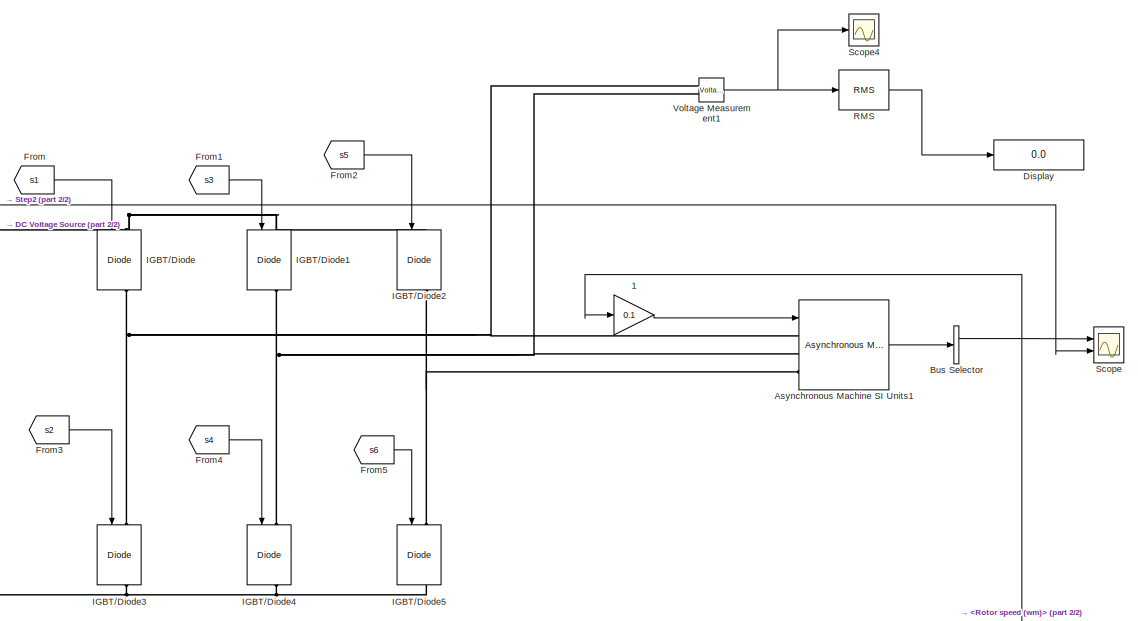
[diagram: root canvas - part 1/2, right side, full height]
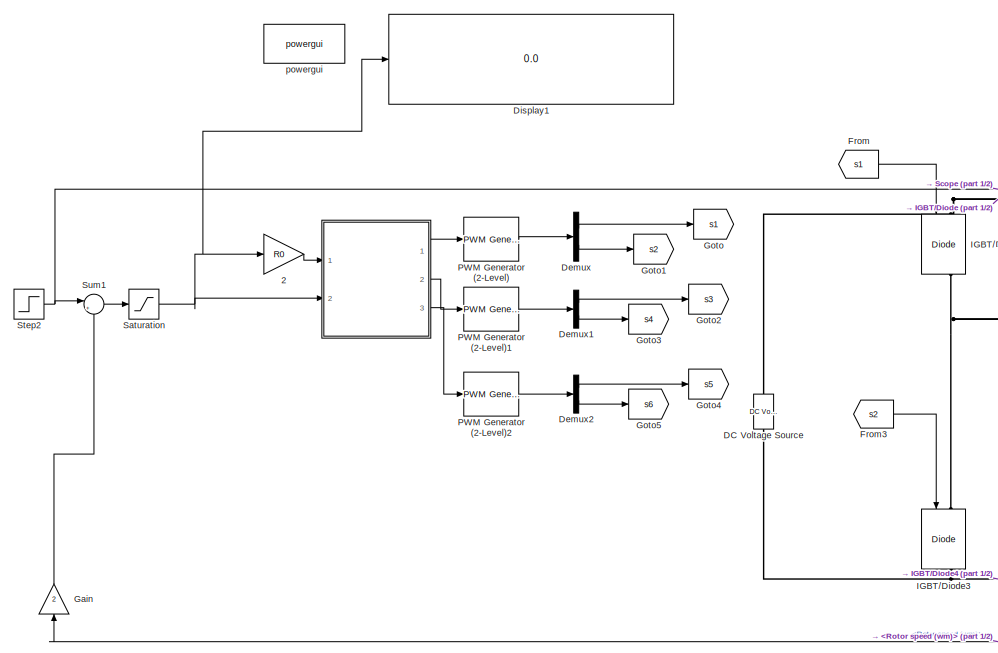
[diagram: root canvas - part 2/2, left side, full height]
MODEL slx_7ff1ade69273
KIND model
CONFIG AbsTol = auto
CONFIG EnableMultiTasking = off
CONFIG FixedStep = 1e-5
CONFIG MaxStep = 1e-4
CONFIG MinStep = auto
CONFIG RelTol = 1e-3
CONFIG SampleTimeConstraint = Unconstrained
CONFIG SolverName = VariableStepAuto
CONFIG StartTime = 0.0
CONFIG StopTime = 2
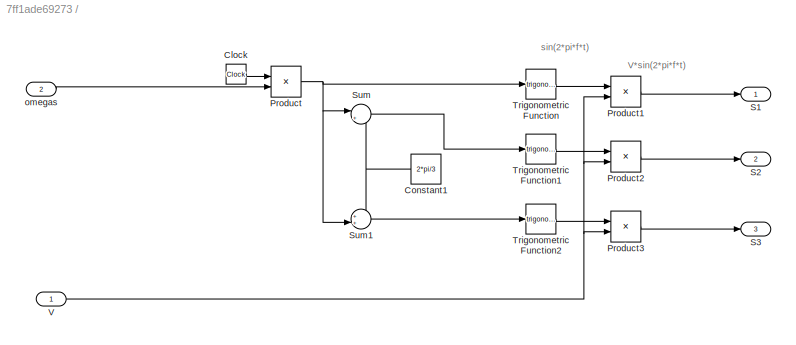
BLOCK [SubSystem]   
  Ports = [2, 3]
  RequestExecContextInheritance = off
BLOCK [Clock]   /Clock
BLOCK [Constant]   /Constant1
  NameLocation = top
  Value = 2*pi/3
BLOCK [Product]   /Product
  Ports = [2, 1]
BLOCK [Product]   /Product1
  Ports = [2, 1]
BLOCK [Product]   /Product2
  Ports = [2, 1]
BLOCK [Product]   /Product3
  Ports = [2, 1]
BLOCK [Outport]   /S1
BLOCK [Outport]   /S2 
  Port = 2
BLOCK [Outport]   /S3
  Port = 3
BLOCK [Sum]   /Sum
  Inputs = |+-
  Ports = [2, 1]
BLOCK [Sum]   /Sum1
  Inputs = ++|
  Ports = [2, 1]
BLOCK [Trigonometry]   /Trigonometric Function
  Ports = [1, 1]
BLOCK [Trigonometry]   /Trigonometric Function1
  Ports = [1, 1]
BLOCK [Trigonometry]   /Trigonometric Function2
  Ports = [1, 1]
BLOCK [Inport]   /V
BLOCK [Inport]   /omegas
  Port = 2
BLOCK [Gain]  1
  Gain = 0.1
BLOCK [Gain]  2
  Gain = R0
BLOCK [Reference] Asynchronous Machine SI Units1  REF=spsAsynchronousMachineSIUnitsLib/Asynchronous Machine
SI Units
  Ports = [1, 1, 0, 0, 0, 3]
  SourceBlock = spsAsynchronousMachineSIUnitsLib/Asynchronous Machine\nSI Units
  SourceProductBaseCode = PS
  SourceType = Asynchronous Machine
BLOCK [BusSelector] Bus Selector
  OutputSignals = Mechanical.Rotor speed (wm),Mechanical.Electromagnetic torque Te (N*m)
  Ports = [1, 2]
BLOCK [Reference] DC Voltage Source  REF=spsDCVoltageSourceLib/DC Voltage Source
  Ports = [0, 0, 0, 0, 0, 1, 1]
  SourceBlock = spsDCVoltageSourceLib/DC Voltage Source
  SourceProductBaseCode = PS
  SourceType = DC Voltage Source
BLOCK [Demux] Demux
  Outputs = 2
  Ports = [1, 2]
BLOCK [Demux] Demux1
  Outputs = 2
  Ports = [1, 2]
BLOCK [Demux] Demux2
  Outputs = 2
  Ports = [1, 2]
BLOCK [Display] Display
  Decimation = 1
  Ports = [1]
BLOCK [Display] Display1
  Decimation = 1
  Format = long
  Ports = [1]
BLOCK [From] From
  GotoTag = s1
BLOCK [From] From1
  GotoTag = s3
BLOCK [From] From2
  GotoTag = s5
BLOCK [From] From3
  GotoTag = s2
BLOCK [From] From4
  GotoTag = s4
BLOCK [From] From5
  GotoTag = s6
BLOCK [Gain] Gain
  Gain = 2
  NameLocation = right
BLOCK [Goto] Goto
  GotoTag = s1
BLOCK [Goto] Goto1
  GotoTag = s2
BLOCK [Goto] Goto2
  GotoTag = s3
BLOCK [Goto] Goto3
  GotoTag = s4
BLOCK [Goto] Goto4
  GotoTag = s5
BLOCK [Goto] Goto5
  GotoTag = s6
BLOCK [Reference] IGBT//Diode  REF=spsIGBTDiodeLib/IGBT//Diode
  NameLocation = left
  Ports = [1, 1, 0, 0, 0, 1, 1]
  SourceBlock = spsIGBTDiodeLib/IGBT//Diode
  SourceProductBaseCode = PS
  SourceType = IGBT/Diode
BLOCK [Reference] IGBT//Diode1  REF=spsIGBTDiodeLib/IGBT//Diode
  NameLocation = left
  Ports = [1, 1, 0, 0, 0, 1, 1]
  SourceBlock = spsIGBTDiodeLib/IGBT//Diode
  SourceProductBaseCode = PS
  SourceType = IGBT/Diode
BLOCK [Reference] IGBT//Diode2  REF=spsIGBTDiodeLib/IGBT//Diode
  NameLocation = left
  Ports = [1, 1, 0, 0, 0, 1, 1]
  SourceBlock = spsIGBTDiodeLib/IGBT//Diode
  SourceProductBaseCode = PS
  SourceType = IGBT/Diode
BLOCK [Reference] IGBT//Diode3  REF=spsIGBTDiodeLib/IGBT//Diode
  NameLocation = left
  Ports = [1, 1, 0, 0, 0, 1, 1]
  SourceBlock = spsIGBTDiodeLib/IGBT//Diode
  SourceProductBaseCode = PS
  SourceType = IGBT/Diode
BLOCK [Reference] IGBT//Diode4  REF=spsIGBTDiodeLib/IGBT//Diode
  NameLocation = left
  Ports = [1, 1, 0, 0, 0, 1, 1]
  SourceBlock = spsIGBTDiodeLib/IGBT//Diode
  SourceProductBaseCode = PS
  SourceType = IGBT/Diode
BLOCK [Reference] IGBT//Diode5  REF=spsIGBTDiodeLib/IGBT//Diode
  NameLocation = left
  Ports = [1, 1, 0, 0, 0, 1, 1]
  SourceBlock = spsIGBTDiodeLib/IGBT//Diode
  SourceProductBaseCode = PS
  SourceType = IGBT/Diode
BLOCK [Reference] PWM Generator (2-Level)  REF=spsPWMGenerator2LevelLib/PWM Generator
(2-Level)
  Ports = [1, 1]
  SourceBlock = spsPWMGenerator2LevelLib/PWM Generator\n(2-Level)
  SourceProductBaseCode = PS
  SourceType = PWM Generator (2-Level)
BLOCK [Reference] PWM Generator (2-Level)1  REF=spsPWMGenerator2LevelLib/PWM Generator
(2-Level)
  Ports = [1, 1]
  SourceBlock = spsPWMGenerator2LevelLib/PWM Generator\n(2-Level)
  SourceProductBaseCode = PS
  SourceType = PWM Generator (2-Level)
BLOCK [Reference] PWM Generator (2-Level)2  REF=spsPWMGenerator2LevelLib/PWM Generator
(2-Level)
  Ports = [1, 1]
  SourceBlock = spsPWMGenerator2LevelLib/PWM Generator\n(2-Level)
  SourceProductBaseCode = PS
  SourceType = PWM Generator (2-Level)
BLOCK [Reference] RMS  REF=spsRMSLib/RMS
  Ports = [1, 1]
  SourceBlock = spsRMSLib/RMS
  SourceProductBaseCode = PS
  SourceType = RMS
BLOCK [Saturate] Saturation
  LowerLimit = 0
  UpperLimit = 314
BLOCK [Scope] Scope
  Floating = off
  NumInputPorts = 2
  Ports = [2]
  ScopeSpecificationString = Simulink.scopes.TimeScopeBlockCfg('CurrentConfiguration', extmgr.ConfigurationSet(extmgr.Configuration('Core','General UI',true),extmgr.Configuration('Core','Source UI',true),extmgr.Configuration('Sources','WiredSimulink',true),extmgr.Configuration('Visuals','Time Domain',true,'SerializedDisplays',{struct('MinYLimReal','-30.61705','MaxYLimReal','275.55344','YLabelReal','','MinYLimMag','0.00000','M...<+1495ch>
BLOCK [Scope] Scope4
  Floating = off
  NumInputPorts = 1
  Ports = [1]
  ScopeSpecificationString = Simulink.scopes.TimeScopeBlockCfg('CurrentConfiguration', extmgr.ConfigurationSet(extmgr.Configuration('Core','General UI',true),extmgr.Configuration('Core','Source UI',true),extmgr.Configuration('Sources','WiredSimulink',true,'DataLoggingVariableName','ScopeData1'),extmgr.Configuration('Visuals','Time Domain',true,'SerializedDisplays',{struct('MinYLimReal','-750.13183','MaxYLimReal','750.06254','...<+1493ch>
BLOCK [Step] Step2
  After = 15
  Before = 15
  SampleTime = 0
  Time = 0
BLOCK [Sum] Sum1
  Inputs = |++
  Ports = [2, 1]
BLOCK [Reference] Voltage Measurement1  REF=spsVoltageMeasurementLib/Voltage Measurement
  Ports = [0, 1, 0, 0, 0, 2]
  SourceBlock = spsVoltageMeasurementLib/Voltage Measurement
  SourceProductBaseCode = PS
  SourceType = Voltage Measurement
  UserDataPersistent = on
BLOCK [Reference] powergui  REF=spspowerguiLib/powergui
  Ports = []
  Priority = 1
  SourceBlock = spspowerguiLib/powergui
  SourceProductBaseCode = PS
  SourceType = PSB option menu block
ANNOTATION   : V*sin(2*pi*f*t)
ANNOTATION   : sin(2*pi*f*t)
LINE   /Clock:1 ->   /Product:1
NET   /Constant1:1 ->   /Sum1:1,   /Sum:2
LINE   /Product1:1 ->   /S1:1
LINE   /Product2:1 ->   /S2 :1
LINE   /Product3:1 ->   /S3:1
NET   /Product:1 ->   /Sum1:2,   /Sum:1,   /Trigonometric Function:1
LINE   /Sum1:1 ->   /Trigonometric Function2:1
LINE   /Sum:1 ->   /Trigonometric Function1:1
LINE   /Trigonometric Function1:1 ->   /Product2:1
LINE   /Trigonometric Function2:1 ->   /Product3:1
LINE   /Trigonometric Function:1 ->   /Product1:1
NET   /V:1 ->   /Product1:2,   /Product2:2,   /Product3:2
LINE   /omegas:1 ->   /Product:2
LINE   :1 -> PWM Generator (2-Level):1
LINE   :2 -> PWM Generator (2-Level)1:1
LINE   :3 -> PWM Generator (2-Level)2:1
LINE  1:1 -> Asynchronous Machine SI Units1:1
LINE  2:1 ->   :1
LINE Asynchronous Machine SI Units1:1 -> Bus Selector:1
NET Bus Selector:1 ->  1:1, Gain:1, Scope:1
LINE Demux1:1 -> Goto2:1
LINE Demux1:2 -> Goto3:1
LINE Demux2:1 -> Goto4:1
LINE Demux2:2 -> Goto5:1
LINE Demux:1 -> Goto:1
LINE Demux:2 -> Goto1:1
LINE From1:1 -> IGBT//Diode1:1
LINE From2:1 -> IGBT//Diode2:1
LINE From3:1 -> IGBT//Diode3:1
LINE From4:1 -> IGBT//Diode4:1
LINE From5:1 -> IGBT//Diode5:1
LINE From:1 -> IGBT//Diode:1
LINE Gain:1 -> Sum1:2
LINE PWM Generator (2-Level)1:1 -> Demux1:1
LINE PWM Generator (2-Level)2:1 -> Demux2:1
LINE PWM Generator (2-Level):1 -> Demux:1
LINE RMS:1 -> Display:1
NET Saturation:1 ->   :2,  2:1, Display1:1
NET Step2:1 -> Scope:2, Sum1:1
LINE Sum1:1 -> Saturation:1
NET Voltage Measurement1:1 -> RMS:1, Scope4:1
PNET net1: Asynchronous Machine SI Units1:LConn1 -- IGBT//Diode3:LConn1 -- IGBT//Diode:RConn1 -- Voltage Measurement1:LConn1
PNET net2: Asynchronous Machine SI Units1:LConn2 -- IGBT//Diode1:RConn1 -- IGBT//Diode4:LConn1 -- Voltage Measurement1:LConn2
PNET net3: Asynchronous Machine SI Units1:LConn3 -- IGBT//Diode2:RConn1 -- IGBT//Diode5:LConn1
PNET net4: DC Voltage Source:LConn1 -- IGBT//Diode3:RConn1 -- IGBT//Diode4:RConn1 -- IGBT//Diode5:RConn1
PNET net5: DC Voltage Source:RConn1 -- IGBT//Diode1:LConn1 -- IGBT//Diode2:LConn1 -- IGBT//Diode:LConn1
note: NET lines group one-source signal fan-out (src -> all destinations, sorted); 1:1 wires keep LINE; PNET lines group multi-terminal physical nets as a canonical sorted terminal list (undirected conserving connections); 2-terminal nets keep the pairwise PLINE form
